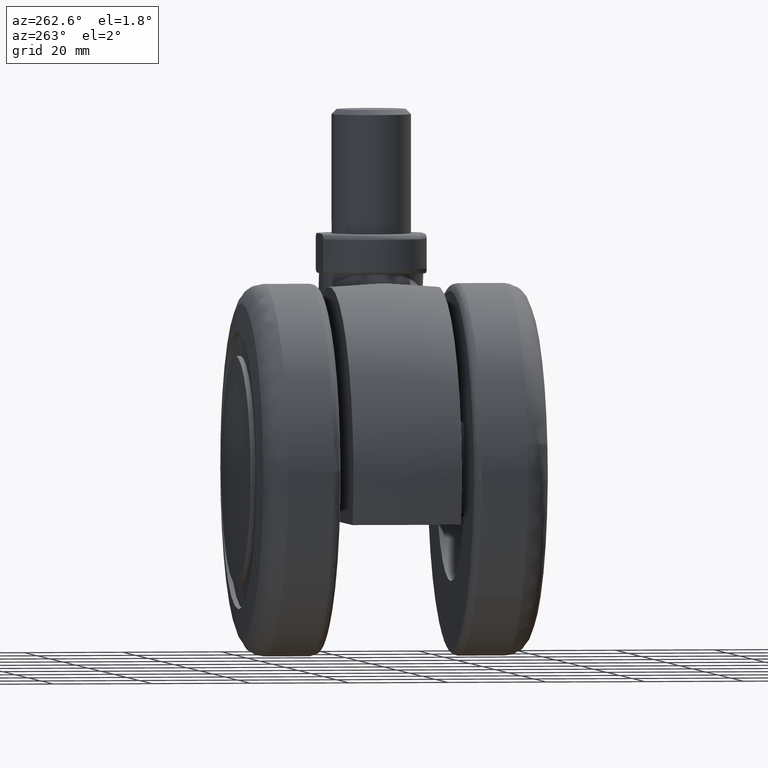
[diagram: clean part render]
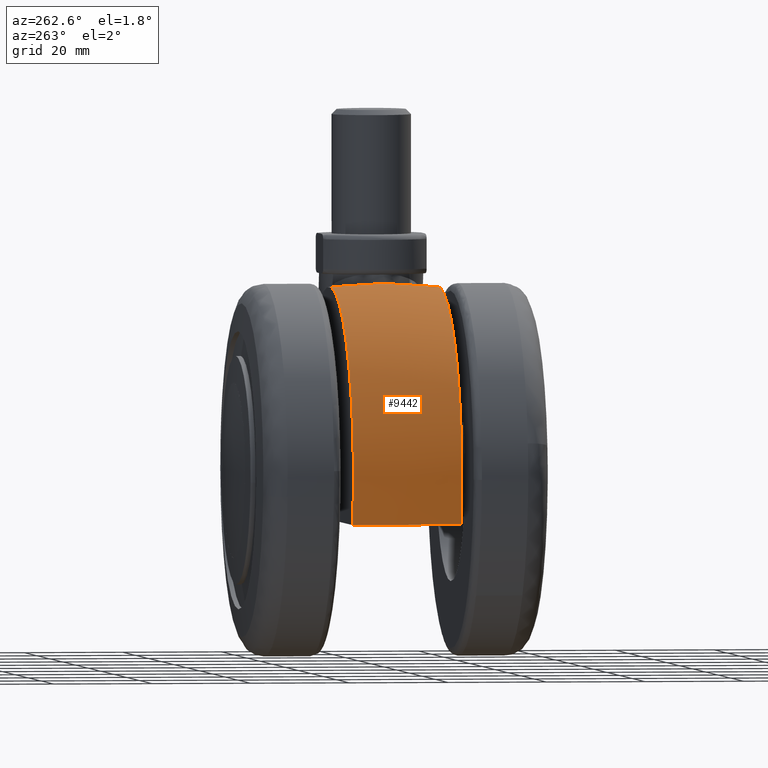
[diagram: same view with one face highlighted and labeled with its STEP entity id]
A machine part, auxiliary view. The second image highlights one B-rep face of the part: STEP entity #9442.
In plain terms, the highlighted face is a freeform B-spline surface patch.
Its self-contained STEP definition (entity closure, byte-faithful):
#7873=CARTESIAN_POINT('',(7.445060537229761,3.355694911807995,36.696052892427687));
#7874=VERTEX_POINT('',#7873);
#7890=CARTESIAN_POINT('',(7.445060537230110,-3.355694911809190,36.696052892427602));
#7891=VERTEX_POINT('',#7890);
#7892=CARTESIAN_POINT('',(7.445060537230110,-3.355694911809190,36.696052892427602));
#7893=CARTESIAN_POINT('',(7.283183039399559,-2.810759655794854,36.747564765283350));
#7894=CARTESIAN_POINT('',(7.163852822650111,-2.257433704287863,36.785099854400968));
#7895=CARTESIAN_POINT('',(7.044064467792479,-1.415810399461570,36.822693682643362));
#7896=CARTESIAN_POINT('',(7.014081275850411,-1.133314476308346,36.832075892724482));
#7897=CARTESIAN_POINT('',(6.974073935624693,-0.564403644824900,36.844587330268773));
#7898=CARTESIAN_POINT('',(6.964230120119503,-0.280388063441764,36.847660271747152));
#7899=CARTESIAN_POINT('',(6.964418675250854,0.568849903684773,36.847601374546059));
#7900=CARTESIAN_POINT('',(7.003878080618295,1.131963494125828,36.835304984546447));
#7901=CARTESIAN_POINT('',(7.123118492108722,1.971979122299266,36.797884031255791));
#7902=CARTESIAN_POINT('',(7.172966465285400,2.251357408399691,36.782213337274150));
#7903=CARTESIAN_POINT('',(7.293660693798926,2.807838883179820,36.744114997437840));
#7904=CARTESIAN_POINT('',(7.364125422379010,3.083239517310057,36.721807672441173));
#7905=CARTESIAN_POINT('',(7.445060537229761,3.355694911807995,36.696052892427687));
#7906=B_SPLINE_CURVE_WITH_KNOTS('',3,(#7892,#7893,#7894,#7895,#7896,#7897,#7898,#7899,#7900,#7901,#7902,#7903,#7904,#7905),.UNSPECIFIED.,.F.,.U.,(4,2,2,2,2,2,4),(0.0,0.250000000000000,0.375000000000000,0.500000000000000,0.750000000000000,0.875000000000000,1.0),.UNSPECIFIED.);
#7907=EDGE_CURVE('',#7891,#7874,#7906,.T.);
#8040=CARTESIAN_POINT('',(14.201734361932120,-11.000000747169860,34.050196698770002));
#8041=VERTEX_POINT('',#8040);
#8093=CARTESIAN_POINT('',(14.201734361932120,-11.000000747169860,34.050196698770002));
#8094=CARTESIAN_POINT('',(13.824168661541419,-10.827568571437130,34.228349346626267));
#8095=CARTESIAN_POINT('',(13.450702989757040,-10.635684934746431,34.398975753956940));
#8096=CARTESIAN_POINT('',(12.897952281787900,-10.315933131598220,34.644026346762828));
#8097=CARTESIAN_POINT('',(12.714499573805520,-10.203706046639480,34.724081604291563));
#8098=CARTESIAN_POINT('',(12.354111525416901,-9.970526459370404,34.879009163624303));
#8099=CARTESIAN_POINT('',(12.176846192826080,-9.849414323000294,34.954034145007491));
#8100=CARTESIAN_POINT('',(11.654065320563550,-9.472393911894594,35.172112786169038));
#8101=CARTESIAN_POINT('',(11.317544233469860,-9.202831479386306,35.308182873746063));
#8102=CARTESIAN_POINT('',(10.670162659643740,-8.625997401240348,35.563086552110448));
#8103=CARTESIAN_POINT('',(10.359293240010260,-8.318736471856708,35.681920940359383));
#8104=CARTESIAN_POINT('',(9.988253647939613,-7.909627079226702,35.820302285761727));
#8105=CARTESIAN_POINT('',(9.914925383580673,-7.826550384715055,35.847469401860437));
#8106=CARTESIAN_POINT('',(9.770076191587076,-7.657836745101937,35.900796142854603));
#8107=CARTESIAN_POINT('',(9.698455282405003,-7.572071348890028,35.926991757909761));
#8108=CARTESIAN_POINT('',(9.487677177375575,-7.312475356760321,36.003612283088508));
#8109=CARTESIAN_POINT('',(9.352280812813669,-7.135999938000436,36.052192998419052));
#8110=CARTESIAN_POINT('',(8.961419684599486,-6.596448109653622,36.190877016023187));
#8111=CARTESIAN_POINT('',(8.721243485818281,-6.223273494567969,36.273947164952162));
#8112=CARTESIAN_POINT('',(8.282392732768614,-5.449910520857487,36.423028698557523));
#8113=CARTESIAN_POINT('',(8.083709083030056,-5.049727309051115,36.489039874397321));
#8114=CARTESIAN_POINT('',(7.818357759072040,-4.428443136378630,36.575945552995442));
#8115=CARTESIAN_POINT('',(7.735364465317349,-4.217839107487103,36.602889415488697));
#8116=CARTESIAN_POINT('',(7.619375336437575,-3.896494491932765,36.640294197948883));
#8117=CARTESIAN_POINT('',(7.582198169644358,-3.788643571864751,36.652238103041903));
#8118=CARTESIAN_POINT('',(7.511206589849587,-3.572643952695403,36.674973101906332));
#8119=CARTESIAN_POINT('',(7.477330475662650,-3.464326607980595,36.685784109008772));
#8120=CARTESIAN_POINT('',(7.445060537230088,-3.355694911809190,36.696052892427588));
#8121=B_SPLINE_CURVE_WITH_KNOTS('',3,(#8093,#8094,#8095,#8096,#8097,#8098,#8099,#8100,#8101,#8102,#8103,#8104,#8105,#8106,#8107,#8108,#8109,#8110,#8111,#8112,#8113,#8114,#8115,#8116,#8117,#8118,#8119,#8120),.UNSPECIFIED.,.F.,.U.,(4,2,2,2,2,2,2,2,2,2,2,2,2,4),(0.0,0.124999999999999,0.187499999999999,0.249999999999998,0.374999999999999,0.499999999999999,0.531249999999999,0.562499999999998,0.624999999999998,0.749999999999999,0.874999999999999,0.937499999999999,0.968750000000000,1.0),.UNSPECIFIED.);
#8122=EDGE_CURVE('',#8041,#7891,#8121,.T.);
#8227=CARTESIAN_POINT('',(14.201732834351960,11.0,34.050197730717599));
#8228=VERTEX_POINT('',#8227);
#8244=CARTESIAN_POINT('',(7.445060537229727,3.355694911807999,36.696052892427723));
#8245=CARTESIAN_POINT('',(7.477453007708728,3.464739092932513,36.685745117454921));
#8246=CARTESIAN_POINT('',(7.511531070006904,3.573664396165587,36.674869427057928));
#8247=CARTESIAN_POINT('',(7.582550307812809,3.789681495752428,36.652125089096977));
#8248=CARTESIAN_POINT('',(7.619520930048886,3.896888771634317,36.640247161428327));
#8249=CARTESIAN_POINT('',(7.734744828989186,4.216140550303950,36.603089408157729));
#8250=CARTESIAN_POINT('',(7.817306773175248,4.425816943767123,36.576287348978369));
#8251=CARTESIAN_POINT('',(8.081792675479893,5.045567462576042,36.489672294308782));
#8252=CARTESIAN_POINT('',(8.280471517718345,5.446389564221124,36.423677323064943));
#8253=CARTESIAN_POINT('',(8.611170318294347,6.029364745061300,36.311342009071467));
#8254=CARTESIAN_POINT('',(8.726861712840146,6.220639953878401,36.271666393556742));
#8255=CARTESIAN_POINT('',(8.908580294924958,6.502950844913204,36.208624067727939));
#8256=CARTESIAN_POINT('',(8.970517408250986,6.596287084984258,36.187021362427707));
#8257=CARTESIAN_POINT('',(9.097127122472072,6.781415405158247,36.142602676505049));
#8258=CARTESIAN_POINT('',(9.161783986325824,6.873173828573923,36.119791664745939));
#8259=CARTESIAN_POINT('',(9.489868741536986,7.325342167560808,36.003344045482002));
#8260=CARTESIAN_POINT('',(9.769181465801200,7.668204666906158,35.902016872804083));
#8261=CARTESIAN_POINT('',(10.358955181979150,8.318235784867390,35.682036605069392));
#8262=CARTESIAN_POINT('',(10.669426481820240,8.625394339012818,35.563382645380997));
#8263=CARTESIAN_POINT('',(11.157331726109440,9.060051355684040,35.371262726191560));
#8264=CARTESIAN_POINT('',(11.323673112995721,9.200582520924828,35.304862164286227));
#8265=CARTESIAN_POINT('',(11.663643591835390,9.472967479389849,35.167098733571528));
#8266=CARTESIAN_POINT('',(11.837003617332019,9.604584820071700,35.095841443585357));
#8267=CARTESIAN_POINT('',(12.188724609811819,9.857706217489376,34.949034968745892));
#8268=CARTESIAN_POINT('',(12.366758401552181,9.978981478020588,34.873622500171187));
#8269=CARTESIAN_POINT('',(12.725683481350620,10.210651408094140,34.719220188321451));
#8270=CARTESIAN_POINT('',(12.906761491558170,10.321180627472820,34.640152639364551));
#8271=CARTESIAN_POINT('',(13.454463378795889,10.637547968866039,34.397243424874397));
#8272=CARTESIAN_POINT('',(13.825543339614420,10.828196317425551,34.227700694881371));
#8273=CARTESIAN_POINT('',(14.201732834351960,11.0,34.050197730717599));
#8274=B_SPLINE_CURVE_WITH_KNOTS('',3,(#8244,#8245,#8246,#8247,#8248,#8249,#8250,#8251,#8252,#8253,#8254,#8255,#8256,#8257,#8258,#8259,#8260,#8261,#8262,#8263,#8264,#8265,#8266,#8267,#8268,#8269,#8270,#8271,#8272,#8273),.UNSPECIFIED.,.F.,.U.,(4,2,2,2,2,2,2,2,2,2,2,2,2,2,4),(0.0,0.031250000000000,0.062500000000000,0.125000000000000,0.250000000000000,0.312500000000000,0.343750000000000,0.375000000000000,0.500000000000001,0.625000000000001,0.687500000000001,0.750000000000001,0.812500000000001,0.875000000000001,1.0),.UNSPECIFIED.);
#8275=EDGE_CURVE('',#7874,#8228,#8274,.T.);
#9344=CARTESIAN_POINT('',(-34.393518256721613,12.106286625198722,-12.988964572272447));
#9345=CARTESIAN_POINT('',(-35.081600152330026,6.075486393675075,-13.248823749753743));
#9346=CARTESIAN_POINT('',(-35.081600152330026,0.0,-13.248823749753742));
#9347=CARTESIAN_POINT('',(-35.081600152330012,-6.075489046546312,-13.248823749753745));
#9348=CARTESIAN_POINT('',(-34.393517658027150,-12.106291872547819,-12.988964346171086));
#9349=CARTESIAN_POINT('',(-36.764484203306758,12.106286625198718,-6.710876729611210));
#9350=CARTESIAN_POINT('',(-37.500000000000007,6.075486393675076,-6.845135538112221));
#9351=CARTESIAN_POINT('',(-37.500000000000007,0.0,-6.845135538112219));
#9352=CARTESIAN_POINT('',(-37.500000000000007,-6.075489046546313,-6.845135538112221));
#9353=CARTESIAN_POINT('',(-36.764483563340434,-12.106291872547828,-6.710876612793710));
#9354=CARTESIAN_POINT('',(-36.764484203306758,12.106286625198722,0.0));
#9355=CARTESIAN_POINT('',(-37.500000000000014,6.075486393675076,0.0));
#9356=CARTESIAN_POINT('',(-37.500000000000007,0.0,0.0));
#9357=CARTESIAN_POINT('',(-37.500000000000007,-6.075489046546312,0.0));
#9358=CARTESIAN_POINT('',(-36.764483563340455,-12.106291872547825,0.0));
#9359=CARTESIAN_POINT('',(-36.764484203306750,12.106286625198724,36.764484203306750));
#9360=CARTESIAN_POINT('',(-37.500000000000014,6.075486393675077,37.500000000000014));
#9361=CARTESIAN_POINT('',(-37.500000000000007,0.0,37.500000000000007));
#9362=CARTESIAN_POINT('',(-37.500000000000000,-6.075489046546311,37.500000000000000));
#9363=CARTESIAN_POINT('',(-36.764483563340434,-12.106291872547823,36.764483563340434));
#9364=CARTESIAN_POINT('',(0.0,12.106286625198722,36.764484203306758));
#9365=CARTESIAN_POINT('',(0.0,6.075486393675076,37.500000000000014));
#9366=CARTESIAN_POINT('',(0.0,0.0,37.500000000000007));
#9367=CARTESIAN_POINT('',(0.0,-6.075489046546312,37.500000000000007));
#9368=CARTESIAN_POINT('',(0.0,-12.106291872547825,36.764483563340455));
#9369=CARTESIAN_POINT('',(9.179177238489803,12.106286625198724,36.764484203306765));
#9370=CARTESIAN_POINT('',(9.362817237958344,6.075486393675075,37.500000000000014));
#9371=CARTESIAN_POINT('',(9.362817237958343,0.0,37.500000000000014));
#9372=CARTESIAN_POINT('',(9.362817237958344,-6.075489046546312,37.500000000000014));
#9373=CARTESIAN_POINT('',(9.179177078706134,-12.106291872547827,36.764483563340455));
#9374=CARTESIAN_POINT('',(17.281091518833417,12.106286625198727,32.449825494952918));
#9375=CARTESIAN_POINT('',(17.626819633116614,6.075486393675079,33.099021581031302));
#9376=CARTESIAN_POINT('',(17.626819633116611,0.0,33.099021581031295));
#9377=CARTESIAN_POINT('',(17.626819633116604,-6.075489046546312,33.099021581031302));
#9378=CARTESIAN_POINT('',(17.281091218018194,-12.106291872547823,32.449824930092674));
#9386=(BOUNDED_SURFACE()B_SPLINE_SURFACE(2,2,((#9344,#9349,#9354,#9359,#9364,#9369,#9374),(#9345,#9350,#9355,#9360,#9365,#9370,#9375),(#9346,#9351,#9356,#9361,#9366,#9371,#9376),(#9347,#9352,#9357,#9362,#9367,#9372,#9377),(#9348,#9353,#9358,#9363,#9368,#9373,#9378)),.UNSPECIFIED.,.F.,.F.,.U.)B_SPLINE_SURFACE_WITH_KNOTS((3,2,3),(3,2,2,3),(0.0,12.273789478870100,24.547584243970409),(0.0,14.911688245431421,77.043722601395700,96.925969447543480),.UNSPECIFIED.)GEOMETRIC_REPRESENTATION_ITEM()RATIONAL_B_SPLINE_SURFACE(((0.872148246934755,0.907841700443486,0.976482957191046,0.690477720742882,0.976482957191046,0.884961300620542,0.852013492035702),(0.880963530359284,0.917017757291782,0.986352809085049,0.697456759946438,0.986352809085049,0.893906092646585,0.860625262385770),(0.893152553776853,0.929705627484771,1.0,0.707106781186548,1.0,0.906274189532427,0.872532885250355),(0.880963525109562,0.917017751827210,0.986352803207305,0.697456755790246,0.986352803207305,0.893906087319738,0.860625257257245),(0.872148239341402,0.907841692539368,0.976482948689302,0.690477714731241,0.976482948689302,0.884961292915632,0.852013484617651)))REPRESENTATION_ITEM('')SURFACE());
#9387=ORIENTED_EDGE('',*,*,#7907,.T.);
#9388=ORIENTED_EDGE('',*,*,#8275,.T.);
#9389=CARTESIAN_POINT('',(-35.512042760157797,11.0,-10.0));
#9390=VERTEX_POINT('',#9389);
#9391=CARTESIAN_POINT('',(-35.512042760157762,11.0,-9.999999999999989));
#9392=CARTESIAN_POINT('',(-41.783029732734349,11.000000000000002,12.269555751853270));
#9393=CARTESIAN_POINT('',(-24.467065768340571,11.0,27.612820820897142));
#9394=CARTESIAN_POINT('',(-7.151101803946783,11.000000000000002,42.956085889941001));
#9395=CARTESIAN_POINT('',(14.201732834351940,11.0,34.050197730717557));
#9403=(BOUNDED_CURVE()B_SPLINE_CURVE(2,(#9391,#9392,#9393,#9394,#9395),.UNSPECIFIED.,.F.,.U.)B_SPLINE_CURVE_WITH_KNOTS((3,2,3),(0.0,0.500000000000000,1.0),.UNSPECIFIED.)CURVE()GEOMETRIC_REPRESENTATION_ITEM()RATIONAL_B_SPLINE_CURVE((1.0,0.847198233330302,1.0,0.847198233330302,1.0))REPRESENTATION_ITEM(''));
#9404=EDGE_CURVE('',#9390,#8228,#9403,.T.);
#9405=ORIENTED_EDGE('',*,*,#9404,.F.);
#9406=CARTESIAN_POINT('',(-35.512042381589552,-11.000000747169860,-10.0));
#9407=VERTEX_POINT('',#9406);
#9408=CARTESIAN_POINT('',(-35.512042381589552,-11.000000747169860,-10.0));
#9409=CARTESIAN_POINT('',(-35.721809822897541,-9.175551991606206,-10.0));
#9410=CARTESIAN_POINT('',(-35.879830344843597,-7.340971302271866,-10.0));
#9411=CARTESIAN_POINT('',(-36.011577916186887,-5.034866236017908,-9.999999999999998));
#9412=CARTESIAN_POINT('',(-36.034640040430347,-4.572894179389679,-10.0));
#9413=CARTESIAN_POINT('',(-36.074122184226177,-3.648098148528205,-10.0));
#9414=CARTESIAN_POINT('',(-36.123277710396152,-2.262157622572264,-9.999999999999998));
#9415=CARTESIAN_POINT('',(-36.142453123900317,-0.879949897555591,-10.0));
#9416=CARTESIAN_POINT('',(-36.141311207134592,1.879548341101789,-10.0));
#9417=CARTESIAN_POINT('',(-36.087929604692867,3.712662117098133,-10.0));
#9418=CARTESIAN_POINT('',(-35.877567200097630,7.365990611829057,-10.0));
#9419=CARTESIAN_POINT('',(-35.720584952435857,9.186205150584511,-10.0));
#9420=CARTESIAN_POINT('',(-35.512042760157797,11.0,-10.0));
#9421=B_SPLINE_CURVE_WITH_KNOTS('',3,(#9408,#9409,#9410,#9411,#9412,#9413,#9414,#9415,#9416,#9417,#9418,#9419,#9420),.UNSPECIFIED.,.F.,.U.,(4,2,2,1,2,2,4),(0.0,0.250000000000000,0.312500000000000,0.375000000000000,0.500000000000000,0.750000000000000,1.0),.UNSPECIFIED.);
#9422=EDGE_CURVE('',#9407,#9390,#9421,.T.);
#9423=ORIENTED_EDGE('',*,*,#9422,.F.);
#9424=CARTESIAN_POINT('',(-35.512042381589552,-11.000000747169860,-10.000000000000030));
#9425=CARTESIAN_POINT('',(-41.783029534465193,-11.000000747169860,12.269556154732223));
#9426=CARTESIAN_POINT('',(-24.467064888810270,-11.000000747169860,27.612821113362550));
#9427=CARTESIAN_POINT('',(-7.151100243155345,-11.000000747169860,42.956086071992878));
#9428=CARTESIAN_POINT('',(14.201734361932120,-11.000000747169860,34.050196698770030));
#9436=(BOUNDED_CURVE()B_SPLINE_CURVE(2,(#9424,#9425,#9426,#9427,#9428),.UNSPECIFIED.,.F.,.U.)B_SPLINE_CURVE_WITH_KNOTS((3,2,3),(0.0,0.500000000000000,1.0),.UNSPECIFIED.)CURVE()GEOMETRIC_REPRESENTATION_ITEM()RATIONAL_B_SPLINE_CURVE((1.0,0.847198226455117,1.0,0.847198226455117,1.0))REPRESENTATION_ITEM(''));
#9437=EDGE_CURVE('',#9407,#8041,#9436,.T.);
#9438=ORIENTED_EDGE('',*,*,#9437,.T.);
#9439=ORIENTED_EDGE('',*,*,#8122,.T.);
#9440=EDGE_LOOP('',(#9387,#9388,#9405,#9423,#9438,#9439));
#9441=FACE_OUTER_BOUND('',#9440,.T.);
#9442=ADVANCED_FACE('',(#9441),#9386,.T.);